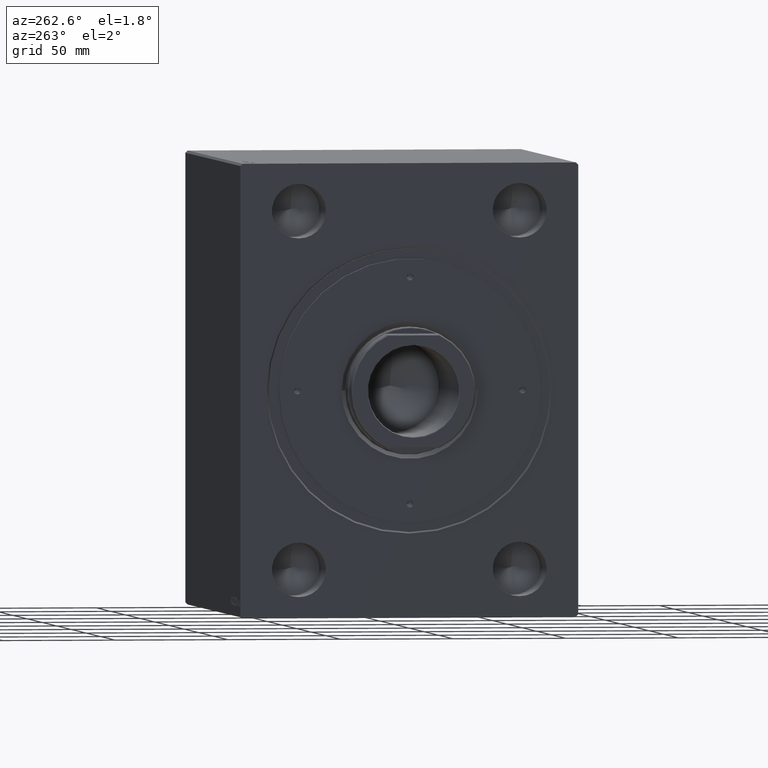
[diagram: clean part render]
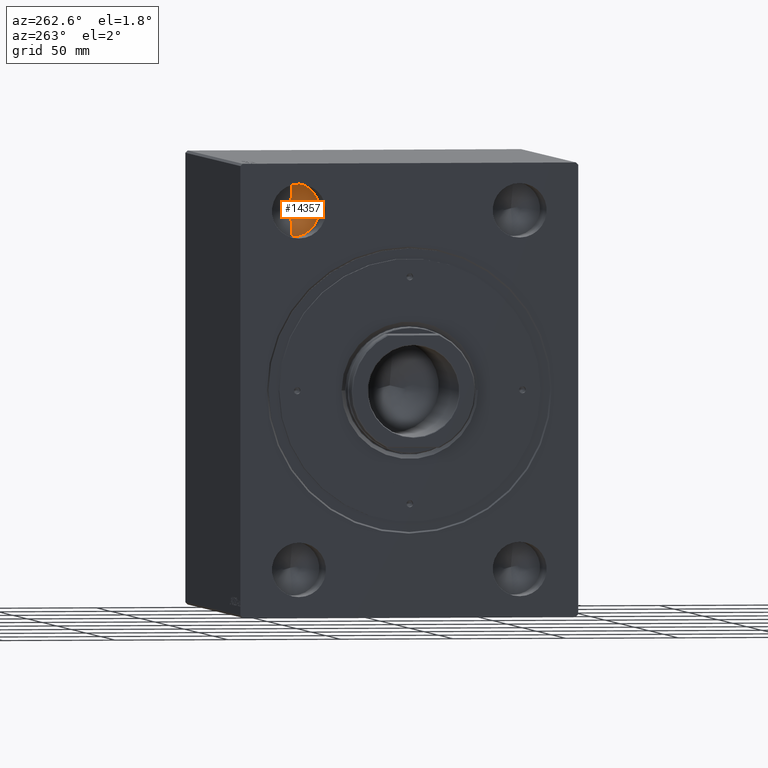
[diagram: same view with one face highlighted and labeled with its STEP entity id]
A machine part, auxiliary view. The second image highlights one B-rep face of the part: STEP entity #14357.
In plain terms, the highlighted conical surface has half-angle 59 deg.
Its self-contained STEP definition (entity closure, byte-faithful):
#430 = VERTEX_POINT ( 'NONE', #6205 ) ;
#1097 = EDGE_LOOP ( 'NONE', ( #3730, #19799, #2480 ) ) ;
#2480 = ORIENTED_EDGE ( 'NONE', *, *, #11540, .T. ) ;
#3451 = CIRCLE ( 'NONE', #8446, 11.99999999999999645 ) ;
#3730 = ORIENTED_EDGE ( 'NONE', *, *, #6426, .F. ) ;
#4433 = CARTESIAN_POINT ( 'NONE',  ( 22.67000000000000171, 49.00000000000000000, 67.00000000000001421 ) ) ;
#5565 = CARTESIAN_POINT ( 'NONE',  ( 22.67000000000000171, 49.00000000000000000, 67.00000000000001421 ) ) ;
#5669 = DIRECTION ( 'NONE',  ( -1.000000000000000000, -0.000000000000000000, -0.000000000000000000 ) ) ;
#6205 = CARTESIAN_POINT ( 'NONE',  ( 29.88032742833073030, 48.99999999999999289, 79.00000000000001421 ) ) ;
#6426 = EDGE_CURVE ( 'NONE', #430, #22794, #17780, .T. ) ;
#8446 = AXIS2_PLACEMENT_3D ( 'NONE', #42825, #5669, #25900 ) ;
#11540 = EDGE_CURVE ( 'NONE', #39851, #22794, #3451, .T. ) ;
#14357 = ADVANCED_FACE ( 'NONE', ( #36755 ), #36199, .F. ) ;
#17151 = DIRECTION ( 'NONE',  ( -1.000000000000000000, -0.000000000000000000, -0.000000000000000000 ) ) ;
#17780 = LINE ( 'NONE', #18441, #43071 ) ;
#18441 = CARTESIAN_POINT ( 'NONE',  ( 22.67000000000000171, 49.00000000000000000, 91.00000000000001421 ) ) ;
#19799 = ORIENTED_EDGE ( 'NONE', *, *, #26560, .T. ) ;
#22794 = VERTEX_POINT ( 'NONE', #36390 ) ;
#23391 = CARTESIAN_POINT ( 'NONE',  ( 22.67000000000000171, 49.00000000000000000, 79.00000000000001421 ) ) ;
#25900 = DIRECTION ( 'NONE',  ( 0.000000000000000000, 0.000000000000000000, 1.000000000000000000 ) ) ;
#26560 = EDGE_CURVE ( 'NONE', #430, #39851, #34905, .T. ) ;
#28694 = DIRECTION ( 'NONE',  ( -0.5150380749100547106, 0.000000000000000000, 0.8571673007021120005 ) ) ;
#31334 = VECTOR ( 'NONE', #35349, 1000.000000000000000 ) ;
#34905 = LINE ( 'NONE', #4433, #31334 ) ;
#35349 = DIRECTION ( 'NONE',  ( -0.5150380749100547106, 1.049727191138618326E-16, -0.8571673007021120005 ) ) ;
#36199 = CONICAL_SURFACE ( 'NONE', #42616, 11.99999999999999645, 1.029744258676653867 ) ;
#36390 = CARTESIAN_POINT ( 'NONE',  ( 22.67000000000000171, 49.00000000000000000, 91.00000000000001421 ) ) ;
#36755 = FACE_OUTER_BOUND ( 'NONE', #1097, .T. ) ;
#39851 = VERTEX_POINT ( 'NONE', #5565 ) ;
#40092 = DIRECTION ( 'NONE',  ( 0.000000000000000000, 0.000000000000000000, 1.000000000000000000 ) ) ;
#42616 = AXIS2_PLACEMENT_3D ( 'NONE', #23391, #17151, #40092 ) ;
#42825 = CARTESIAN_POINT ( 'NONE',  ( 22.67000000000000171, 49.00000000000000000, 79.00000000000001421 ) ) ;
#43071 = VECTOR ( 'NONE', #28694, 1000.000000000000000 ) ;